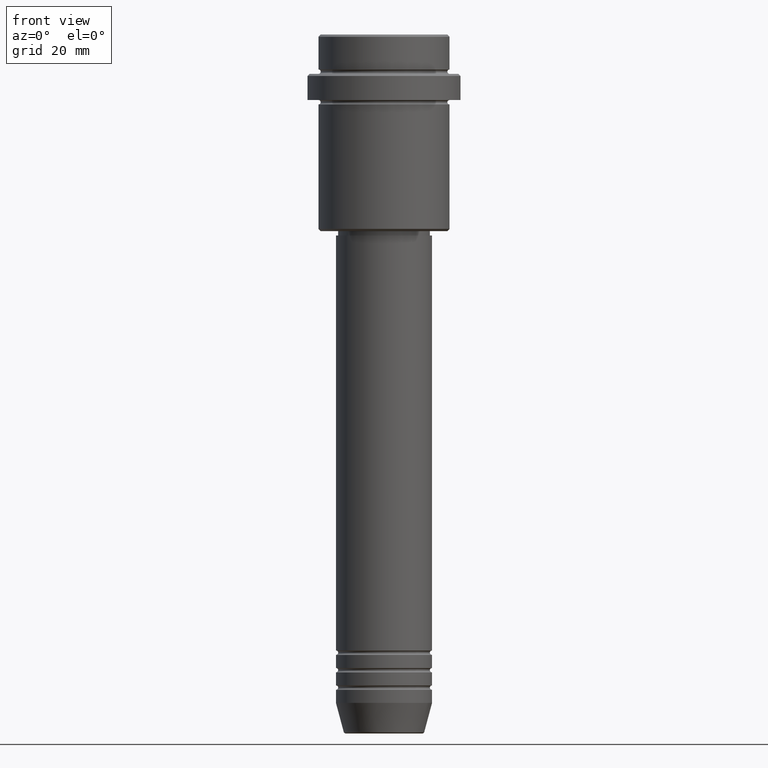
[diagram: clean part render]
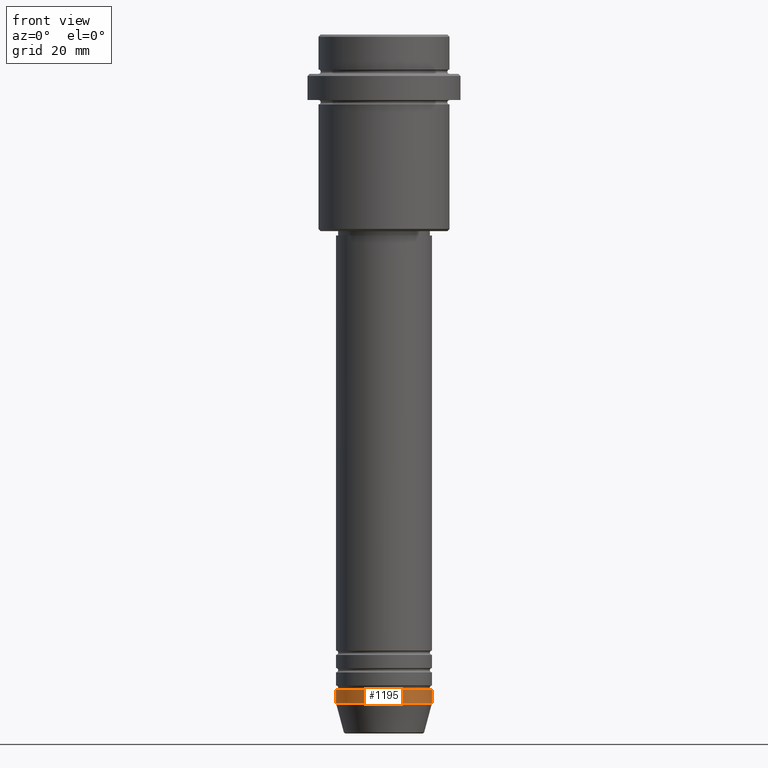
[diagram: same view with one face highlighted and labeled with its STEP entity id]
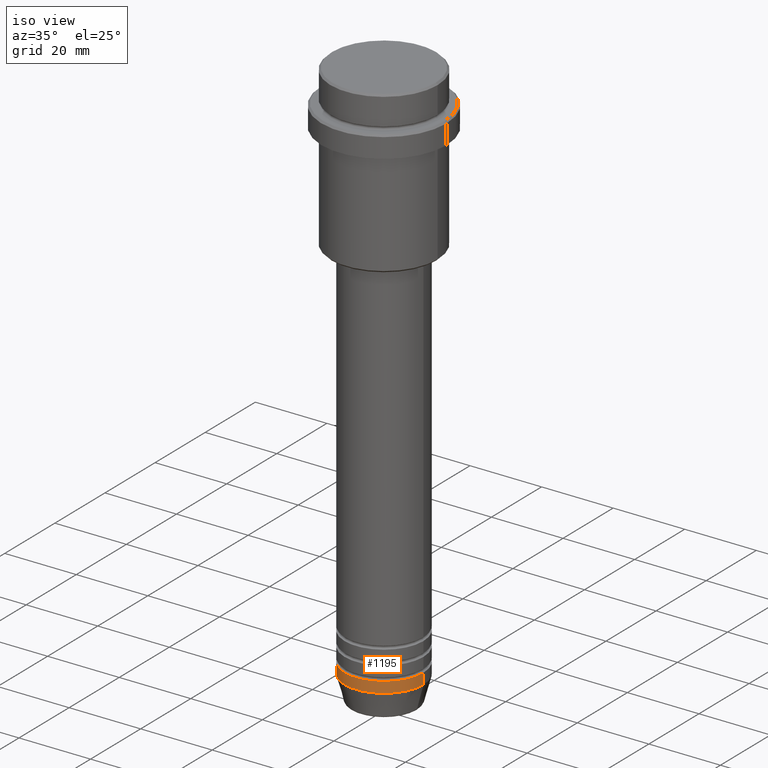
[diagram: same view with one face highlighted and labeled with its STEP entity id]
A machine part, front view. The second image highlights one B-rep face of the part: STEP entity #1195.
A second angle (iso view) of the same face is appended — the face is thin or edge-on in the first view.
In plain terms, the highlighted cylindrical surface (partial cylindrical patch) has radius 11 mm, axis along (-0, -0, 1).
Its self-contained STEP definition (entity closure, byte-faithful):
#18 = CARTESIAN_POINT ( 'NONE',  ( 0.000000000000000000, 0.000000000000000000, 0.000000000000000000 ) ) ;
#53 = DIRECTION ( 'NONE',  ( -0.000000000000000000, -0.000000000000000000, 1.000000000000000000 ) ) ;
#59 = CARTESIAN_POINT ( 'NONE',  ( -11.00000000000000000, 1.347111479062088405E-15, 0.000000000000000000 ) ) ;
#99 = DIRECTION ( 'NONE',  ( -0.000000000000000000, -0.000000000000000000, 1.000000000000000000 ) ) ;
#108 = VECTOR ( 'NONE', #162, 1000.000000000000000 ) ;
#137 = ORIENTED_EDGE ( 'NONE', *, *, #783, .T. ) ;
#156 = ORIENTED_EDGE ( 'NONE', *, *, #1410, .F. ) ;
#162 = DIRECTION ( 'NONE',  ( -0.000000000000000000, -0.000000000000000000, 1.000000000000000000 ) ) ;
#231 = DIRECTION ( 'NONE',  ( 1.000000000000000000, 0.000000000000000000, 0.000000000000000000 ) ) ;
#343 = VECTOR ( 'NONE', #53, 1000.000000000000000 ) ;
#346 = ORIENTED_EDGE ( 'NONE', *, *, #691, .F. ) ;
#434 = LINE ( 'NONE', #1157, #108 ) ;
#507 = ORIENTED_EDGE ( 'NONE', *, *, #923, .T. ) ;
#572 = DIRECTION ( 'NONE',  ( -0.000000000000000000, -0.000000000000000000, 1.000000000000000000 ) ) ;
#629 = AXIS2_PLACEMENT_3D ( 'NONE', #18, #99, #987 ) ;
#690 = VERTEX_POINT ( 'NONE', #994 ) ;
#691 = EDGE_CURVE ( 'NONE', #1062, #1008, #1024, .T. ) ;
#716 = LINE ( 'NONE', #59, #343 ) ;
#781 = DIRECTION ( 'NONE',  ( -0.000000000000000000, -0.000000000000000000, 1.000000000000000000 ) ) ;
#783 = EDGE_CURVE ( 'NONE', #877, #1008, #434, .T. ) ;
#813 = CARTESIAN_POINT ( 'NONE',  ( 0.000000000000000000, 0.000000000000000000, -153.0000000000000000 ) ) ;
#877 = VERTEX_POINT ( 'NONE', #1359 ) ;
#878 = EDGE_LOOP ( 'NONE', ( #156, #507, #137, #346 ) ) ;
#923 = EDGE_CURVE ( 'NONE', #690, #877, #1349, .T. ) ;
#947 = CARTESIAN_POINT ( 'NONE',  ( -11.00000000000000000, 1.347111479062088405E-15, -150.0000000000000000 ) ) ;
#987 = DIRECTION ( 'NONE',  ( 1.000000000000000000, 0.000000000000000000, 0.000000000000000000 ) ) ;
#994 = CARTESIAN_POINT ( 'NONE',  ( -11.00000000000000000, 1.347111479062088405E-15, -153.0000000000000000 ) ) ;
#1008 = VERTEX_POINT ( 'NONE', #1050 ) ;
#1024 = CIRCLE ( 'NONE', #1162, 11.00000000000000000 ) ;
#1050 = CARTESIAN_POINT ( 'NONE',  ( 11.00000000000000000, 0.000000000000000000, -150.0000000000000000 ) ) ;
#1062 = VERTEX_POINT ( 'NONE', #947 ) ;
#1078 = FACE_OUTER_BOUND ( 'NONE', #878, .T. ) ;
#1157 = CARTESIAN_POINT ( 'NONE',  ( 11.00000000000000000, 0.000000000000000000, 0.000000000000000000 ) ) ;
#1162 = AXIS2_PLACEMENT_3D ( 'NONE', #1220, #781, #231 ) ;
#1187 = DIRECTION ( 'NONE',  ( 1.000000000000000000, 0.000000000000000000, 0.000000000000000000 ) ) ;
#1190 = AXIS2_PLACEMENT_3D ( 'NONE', #813, #572, #1187 ) ;
#1195 = ADVANCED_FACE ( 'NONE', ( #1078 ), #1197, .T. ) ;
#1197 = CYLINDRICAL_SURFACE ( 'NONE', #629, 11.00000000000000000 ) ;
#1220 = CARTESIAN_POINT ( 'NONE',  ( 0.000000000000000000, 0.000000000000000000, -150.0000000000000000 ) ) ;
#1349 = CIRCLE ( 'NONE', #1190, 11.00000000000000000 ) ;
#1359 = CARTESIAN_POINT ( 'NONE',  ( 11.00000000000000000, 0.000000000000000000, -153.0000000000000000 ) ) ;
#1410 = EDGE_CURVE ( 'NONE', #690, #1062, #716, .T. ) ;